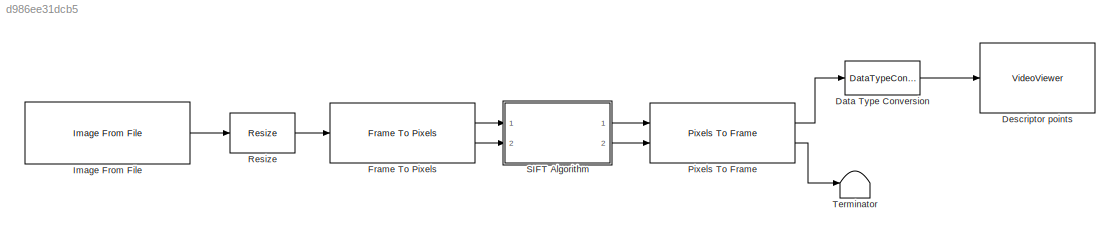
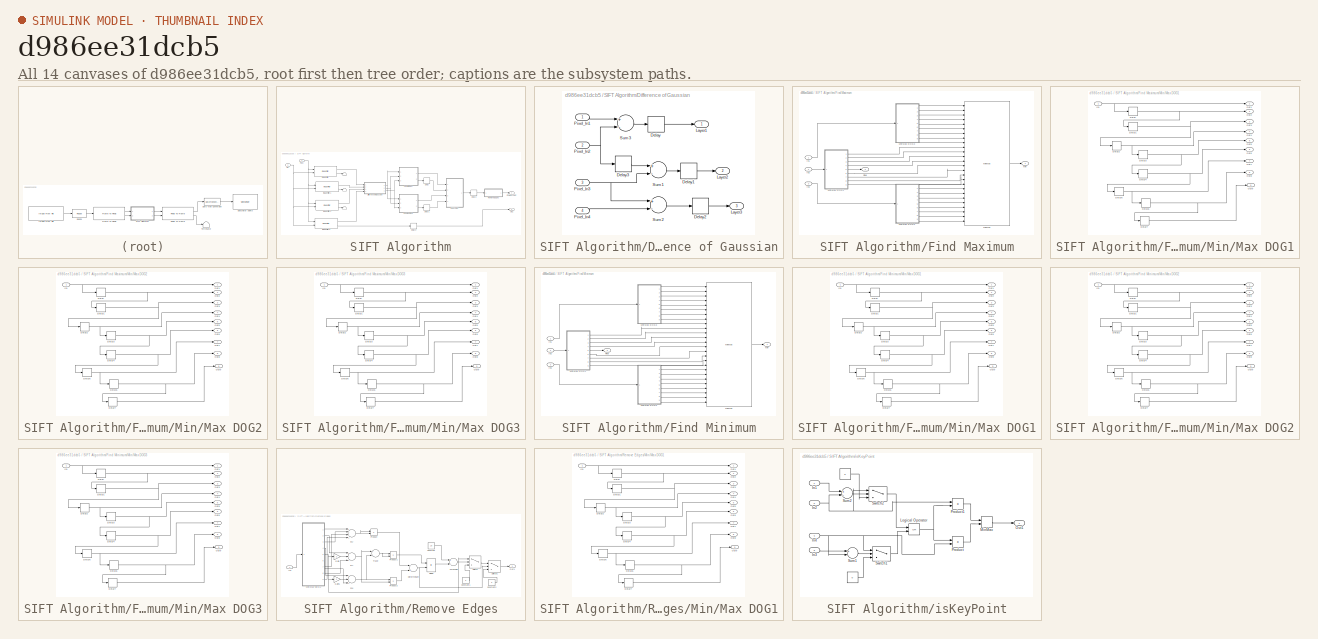
[diagram: thumbnail index - all 14 canvases of the model, root first then tree order]
MODEL slx_d986ee31dcb5
KIND model
CONFIG AbsTol = auto
CONFIG FixedStep = auto
CONFIG MaxStep = auto
CONFIG MinStep = auto
CONFIG RelTol = 1e-3
CONFIG SampleTimeConstraint = Unconstrained
CONFIG Solver = VariableStepAuto
CONFIG SolverMode = Auto
CONFIG SolverName = VariableStepAuto
CONFIG StartTime = 0.0
CONFIG StopTime = 10.0
BLOCK [DataTypeConversion] Data Type Conversion
  OutDataTypeStr = double
  RndMeth = Floor
  SaturateOnIntegerOverflow = off
BLOCK [VideoViewer] Descriptor points
  Ports = [1]
  ScopeSpecificationString = vipscopes.VideoViewerScopeCfg('CurrentConfiguration', extmgr.ConfigurationSet(extmgr.Configuration('Core','General UI',true),extmgr.Configuration('Core','Source UI',true),extmgr.Configuration('Sources','WiredSimulink',true),extmgr.Configuration('Visuals','Video',true),extmgr.Configuration('Tools','Image Tool',true),extmgr.Configuration('Tools','Pixel Region',true),extmgr.Configuration('Tools','Ima...<+46ch>
BLOCK [Reference] Frame To Pixels  REF=visionhdlio/Frame To Pixels
  Ports = [1, 2]
  SourceBlock = visionhdlio/Frame To Pixels
  SourceType = Frame To Pixels
BLOCK [Reference] Image From File  REF=visionsources/Image From File
  Ports = [0, 1]
  SourceBlock = visionsources/Image From File
  SourceType = Image From File
  Tag = vipblks_nd
BLOCK [Reference] Pixels To Frame  REF=visionhdlio/Pixels To Frame
  Ports = [2, 2]
  SourceBlock = visionhdlio/Pixels To Frame
  SourceType = Pixels To Frame
BLOCK [Reference] Resize  REF=visiongeotforms/Resize
  Ports = [1, 1]
  SourceBlock = visiongeotforms/Resize
  SourceType = Resize
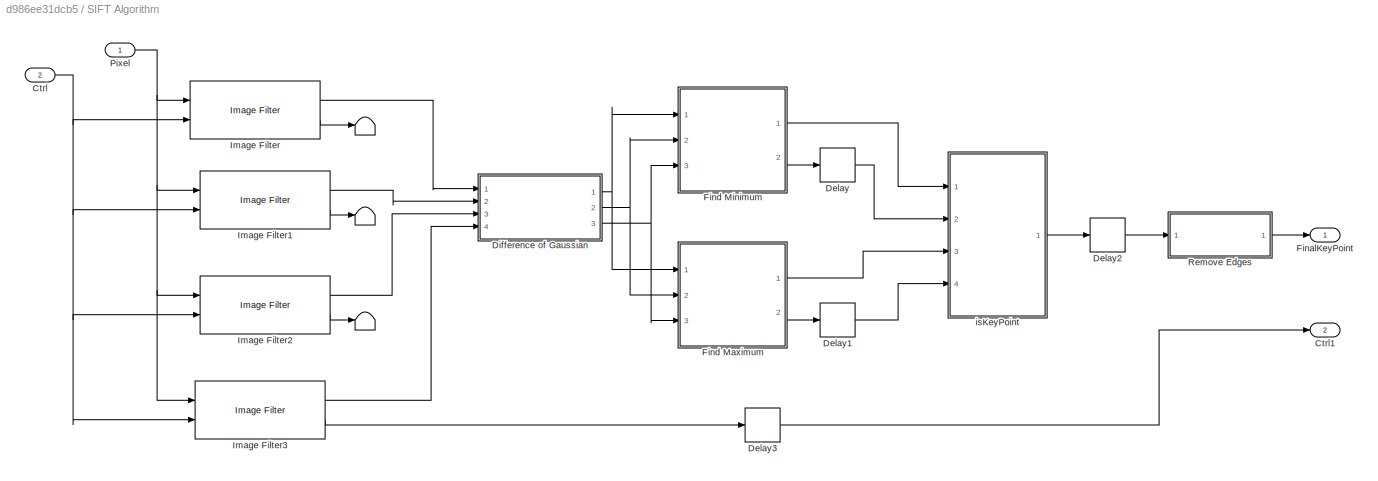
BLOCK [SubSystem] SIFT Algorithm
  Ports = [2, 2]
  RequestExecContextInheritance = off
  Variant = off
BLOCK [Terminator] SIFT Algorithm/ 
BLOCK [Inport] SIFT Algorithm/Ctrl
  IconDisplay = Port number
  Port = 2
BLOCK [Outport] SIFT Algorithm/Ctrl1
  IconDisplay = Port number
  Port = 2
BLOCK [Delay] SIFT Algorithm/Delay
  DelayLength = 323
  InitialCondition = 0
  InputPortMap = u0
  Ports = [1, 1]
BLOCK [Delay] SIFT Algorithm/Delay1
  DelayLength = 323
  InitialCondition = 0
  InputPortMap = u0
  Ports = [1, 1]
BLOCK [Delay] SIFT Algorithm/Delay2
  DelayLength = 1
  InitialCondition = 0
  InputPortMap = u0
  Ports = [1, 1]
BLOCK [Delay] SIFT Algorithm/Delay3
  DelayLength = 1373
  InitialCondition = 0
  InputPortMap = u0
  Ports = [1, 1]
BLOCK [SubSystem] SIFT Algorithm/Difference of Gaussian
  Ports = [4, 3]
  RequestExecContextInheritance = off
  Variant = off
BLOCK [Delay] SIFT Algorithm/Difference of Gaussian/Delay
  DelayLength = 13
  InitialCondition = 0
  InputPortMap = u0
  Ports = [1, 1]
BLOCK [Delay] SIFT Algorithm/Difference of Gaussian/Delay1
  DelayLength = 1
  InitialCondition = 0
  InputPortMap = u0
  Ports = [1, 1]
BLOCK [Delay] SIFT Algorithm/Difference of Gaussian/Delay2
  DelayLength = 1
  InitialCondition = 0
  InputPortMap = u0
  Ports = [1, 1]
BLOCK [Delay] SIFT Algorithm/Difference of Gaussian/Delay3
  DelayLength = 12
  InitialCondition = 0
  InputPortMap = u0
  Ports = [1, 1]
BLOCK [Outport] SIFT Algorithm/Difference of Gaussian/Layer1
  IconDisplay = Port number
BLOCK [Outport] SIFT Algorithm/Difference of Gaussian/Layer2
  IconDisplay = Port number
  Port = 2
BLOCK [Outport] SIFT Algorithm/Difference of Gaussian/Layer3
  IconDisplay = Port number
  Port = 3
BLOCK [Inport] SIFT Algorithm/Difference of Gaussian/Pixel_In1
  IconDisplay = Port number
BLOCK [Inport] SIFT Algorithm/Difference of Gaussian/Pixel_In2
  IconDisplay = Port number
  Port = 2
BLOCK [Inport] SIFT Algorithm/Difference of Gaussian/Pixel_In3
  IconDisplay = Port number
  Port = 3
BLOCK [Inport] SIFT Algorithm/Difference of Gaussian/Pixel_In4
  IconDisplay = Port number
  Port = 4
BLOCK [Sum] SIFT Algorithm/Difference of Gaussian/Sum1
  InputSameDT = off
  Inputs = +-
  OutDataTypeStr = Inherit: Inherit via internal rule
  Ports = [2, 1]
  SaturateOnIntegerOverflow = off
BLOCK [Sum] SIFT Algorithm/Difference of Gaussian/Sum2
  InputSameDT = off
  Inputs = +-
  OutDataTypeStr = Inherit: Inherit via internal rule
  Ports = [2, 1]
  SaturateOnIntegerOverflow = off
BLOCK [Sum] SIFT Algorithm/Difference of Gaussian/Sum3
  InputSameDT = off
  Inputs = +-
  OutDataTypeStr = Inherit: Inherit via internal rule
  Ports = [2, 1]
  SaturateOnIntegerOverflow = off
BLOCK [Outport] SIFT Algorithm/FinalKeyPoint
  IconDisplay = Port number
BLOCK [SubSystem] SIFT Algorithm/Find Maximum
  Ports = [3, 2]
  RequestExecContextInheritance = off
  Variant = off
BLOCK [Inport] SIFT Algorithm/Find Maximum/In1
  IconDisplay = Port number
BLOCK [Inport] SIFT Algorithm/Find Maximum/In2
  IconDisplay = Port number
  Port = 2
BLOCK [Inport] SIFT Algorithm/Find Maximum/In3
  IconDisplay = Port number
  Port = 3
BLOCK [Outport] SIFT Algorithm/Find Maximum/Min
  IconDisplay = Port number
BLOCK [SubSystem] SIFT Algorithm/Find Maximum/Min//Max DOG1
  Ports = [1, 9]
  RequestExecContextInheritance = off
  Variant = off
BLOCK [Delay] SIFT Algorithm/Find Maximum/Min//Max DOG1/Delay
  DelayLength = 1
  InitialCondition = 0
  InputPortMap = u0
  Ports = [1, 1]
BLOCK [Delay] SIFT Algorithm/Find Maximum/Min//Max DOG1/Delay1
  DelayLength = 1
  InitialCondition = 0
  InputPortMap = u0
  Ports = [1, 1]
BLOCK [Delay] SIFT Algorithm/Find Maximum/Min//Max DOG1/Delay2
  DelayLength = 320
  InitialCondition = 0
  InputPortMap = u0
  Ports = [1, 1]
BLOCK [Delay] SIFT Algorithm/Find Maximum/Min//Max DOG1/Delay3
  DelayLength = 1
  InitialCondition = 0
  InputPortMap = u0
  Ports = [1, 1]
BLOCK [Delay] SIFT Algorithm/Find Maximum/Min//Max DOG1/Delay4
  DelayLength = 1
  InitialCondition = 0
  InputPortMap = u0
  Ports = [1, 1]
BLOCK [Delay] SIFT Algorithm/Find Maximum/Min//Max DOG1/Delay5
  DelayLength = 320
  InitialCondition = 0
  InputPortMap = u0
  Ports = [1, 1]
BLOCK [Delay] SIFT Algorithm/Find Maximum/Min//Max DOG1/Delay6
  DelayLength = 1
  InitialCondition = 0
  InputPortMap = u0
  Ports = [1, 1]
BLOCK [Delay] SIFT Algorithm/Find Maximum/Min//Max DOG1/Delay7
  DelayLength = 1
  InitialCondition = 0
  InputPortMap = u0
  Ports = [1, 1]
BLOCK [Inport] SIFT Algorithm/Find Maximum/Min//Max DOG1/In1
  IconDisplay = Port number
BLOCK [Outport] SIFT Algorithm/Find Maximum/Min//Max DOG1/Out1
  IconDisplay = Port number
BLOCK [Outport] SIFT Algorithm/Find Maximum/Min//Max DOG1/Out2
  IconDisplay = Port number
  Port = 2
BLOCK [Outport] SIFT Algorithm/Find Maximum/Min//Max DOG1/Out3
  IconDisplay = Port number
  Port = 3
BLOCK [Outport] SIFT Algorithm/Find Maximum/Min//Max DOG1/Out4
  IconDisplay = Port number
  Port = 4
BLOCK [Outport] SIFT Algorithm/Find Maximum/Min//Max DOG1/Out5
  IconDisplay = Port number
  Port = 5
BLOCK [Outport] SIFT Algorithm/Find Maximum/Min//Max DOG1/Out6
  IconDisplay = Port number
  Port = 6
BLOCK [Outport] SIFT Algorithm/Find Maximum/Min//Max DOG1/Out7
  IconDisplay = Port number
  Port = 7
BLOCK [Outport] SIFT Algorithm/Find Maximum/Min//Max DOG1/Out8
  IconDisplay = Port number
  Port = 8
BLOCK [Outport] SIFT Algorithm/Find Maximum/Min//Max DOG1/Out9
  IconDisplay = Port number
  Port = 9
BLOCK [SubSystem] SIFT Algorithm/Find Maximum/Min//Max DOG2
  Ports = [1, 9]
  RequestExecContextInheritance = off
  Variant = off
BLOCK [Delay] SIFT Algorithm/Find Maximum/Min//Max DOG2/Delay
  DelayLength = 1
  InitialCondition = 0
  InputPortMap = u0
  Ports = [1, 1]
BLOCK [Delay] SIFT Algorithm/Find Maximum/Min//Max DOG2/Delay1
  DelayLength = 1
  InitialCondition = 0
  InputPortMap = u0
  Ports = [1, 1]
BLOCK [Delay] SIFT Algorithm/Find Maximum/Min//Max DOG2/Delay2
  DelayLength = 320
  InitialCondition = 0
  InputPortMap = u0
  Ports = [1, 1]
BLOCK [Delay] SIFT Algorithm/Find Maximum/Min//Max DOG2/Delay3
  DelayLength = 1
  InitialCondition = 0
  InputPortMap = u0
  Ports = [1, 1]
BLOCK [Delay] SIFT Algorithm/Find Maximum/Min//Max DOG2/Delay4
  DelayLength = 1
  InitialCondition = 0
  InputPortMap = u0
  Ports = [1, 1]
BLOCK [Delay] SIFT Algorithm/Find Maximum/Min//Max DOG2/Delay5
  DelayLength = 320
  InitialCondition = 0
  InputPortMap = u0
  Ports = [1, 1]
BLOCK [Delay] SIFT Algorithm/Find Maximum/Min//Max DOG2/Delay6
  DelayLength = 1
  InitialCondition = 0
  InputPortMap = u0
  Ports = [1, 1]
BLOCK [Delay] SIFT Algorithm/Find Maximum/Min//Max DOG2/Delay7
  DelayLength = 1
  InitialCondition = 0
  InputPortMap = u0
  Ports = [1, 1]
BLOCK [Inport] SIFT Algorithm/Find Maximum/Min//Max DOG2/In1
  IconDisplay = Port number
BLOCK [Outport] SIFT Algorithm/Find Maximum/Min//Max DOG2/Out1
  IconDisplay = Port number
BLOCK [Outport] SIFT Algorithm/Find Maximum/Min//Max DOG2/Out2
  IconDisplay = Port number
  Port = 2
BLOCK [Outport] SIFT Algorithm/Find Maximum/Min//Max DOG2/Out3
  IconDisplay = Port number
  Port = 3
BLOCK [Outport] SIFT Algorithm/Find Maximum/Min//Max DOG2/Out4
  IconDisplay = Port number
  Port = 4
BLOCK [Outport] SIFT Algorithm/Find Maximum/Min//Max DOG2/Out5
  IconDisplay = Port number
  Port = 5
BLOCK [Outport] SIFT Algorithm/Find Maximum/Min//Max DOG2/Out6
  IconDisplay = Port number
  Port = 6
BLOCK [Outport] SIFT Algorithm/Find Maximum/Min//Max DOG2/Out7
  IconDisplay = Port number
  Port = 7
BLOCK [Outport] SIFT Algorithm/Find Maximum/Min//Max DOG2/Out8
  IconDisplay = Port number
  Port = 8
BLOCK [Outport] SIFT Algorithm/Find Maximum/Min//Max DOG2/Out9
  IconDisplay = Port number
  Port = 9
BLOCK [SubSystem] SIFT Algorithm/Find Maximum/Min//Max DOG3
  Ports = [1, 9]
  RequestExecContextInheritance = off
  Variant = off
BLOCK [Delay] SIFT Algorithm/Find Maximum/Min//Max DOG3/Delay
  DelayLength = 1
  InitialCondition = 0
  InputPortMap = u0
  Ports = [1, 1]
BLOCK [Delay] SIFT Algorithm/Find Maximum/Min//Max DOG3/Delay1
  DelayLength = 1
  InitialCondition = 0
  InputPortMap = u0
  Ports = [1, 1]
BLOCK [Delay] SIFT Algorithm/Find Maximum/Min//Max DOG3/Delay2
  DelayLength = 320
  InitialCondition = 0
  InputPortMap = u0
  Ports = [1, 1]
BLOCK [Delay] SIFT Algorithm/Find Maximum/Min//Max DOG3/Delay3
  DelayLength = 1
  InitialCondition = 0
  InputPortMap = u0
  Ports = [1, 1]
BLOCK [Delay] SIFT Algorithm/Find Maximum/Min//Max DOG3/Delay4
  DelayLength = 1
  InitialCondition = 0
  InputPortMap = u0
  Ports = [1, 1]
BLOCK [Delay] SIFT Algorithm/Find Maximum/Min//Max DOG3/Delay5
  DelayLength = 320
  InitialCondition = 0
  InputPortMap = u0
  Ports = [1, 1]
BLOCK [Delay] SIFT Algorithm/Find Maximum/Min//Max DOG3/Delay6
  DelayLength = 1
  InitialCondition = 0
  InputPortMap = u0
  Ports = [1, 1]
BLOCK [Delay] SIFT Algorithm/Find Maximum/Min//Max DOG3/Delay7
  DelayLength = 1
  InitialCondition = 0
  InputPortMap = u0
  Ports = [1, 1]
BLOCK [Inport] SIFT Algorithm/Find Maximum/Min//Max DOG3/In1
  IconDisplay = Port number
BLOCK [Outport] SIFT Algorithm/Find Maximum/Min//Max DOG3/Out1
  IconDisplay = Port number
BLOCK [Outport] SIFT Algorithm/Find Maximum/Min//Max DOG3/Out2
  IconDisplay = Port number
  Port = 2
BLOCK [Outport] SIFT Algorithm/Find Maximum/Min//Max DOG3/Out3
  IconDisplay = Port number
  Port = 3
BLOCK [Outport] SIFT Algorithm/Find Maximum/Min//Max DOG3/Out4
  IconDisplay = Port number
  Port = 4
BLOCK [Outport] SIFT Algorithm/Find Maximum/Min//Max DOG3/Out5
  IconDisplay = Port number
  Port = 5
BLOCK [Outport] SIFT Algorithm/Find Maximum/Min//Max DOG3/Out6
  IconDisplay = Port number
  Port = 6
BLOCK [Outport] SIFT Algorithm/Find Maximum/Min//Max DOG3/Out7
  IconDisplay = Port number
  Port = 7
BLOCK [Outport] SIFT Algorithm/Find Maximum/Min//Max DOG3/Out8
  IconDisplay = Port number
  Port = 8
BLOCK [Outport] SIFT Algorithm/Find Maximum/Min//Max DOG3/Out9
  IconDisplay = Port number
  Port = 9
BLOCK [MinMax] SIFT Algorithm/Find Maximum/MinMax
  Function = max
  InputSameDT = off
  Inputs = 26
  Ports = [26, 1]
  SaturateOnIntegerOverflow = off
BLOCK [Outport] SIFT Algorithm/Find Maximum/Pixel
  IconDisplay = Port number
  Port = 2
BLOCK [SubSystem] SIFT Algorithm/Find Minimum
  Ports = [3, 2]
  RequestExecContextInheritance = off
  Variant = off
BLOCK [Inport] SIFT Algorithm/Find Minimum/In1
  IconDisplay = Port number
BLOCK [Inport] SIFT Algorithm/Find Minimum/In2
  IconDisplay = Port number
  Port = 2
BLOCK [Inport] SIFT Algorithm/Find Minimum/In3
  IconDisplay = Port number
  Port = 3
BLOCK [Outport] SIFT Algorithm/Find Minimum/Min
  IconDisplay = Port number
BLOCK [SubSystem] SIFT Algorithm/Find Minimum/Min//Max DOG1
  Ports = [1, 9]
  RequestExecContextInheritance = off
  Variant = off
BLOCK [Delay] SIFT Algorithm/Find Minimum/Min//Max DOG1/Delay
  DelayLength = 1
  InitialCondition = 0
  InputPortMap = u0
  Ports = [1, 1]
BLOCK [Delay] SIFT Algorithm/Find Minimum/Min//Max DOG1/Delay1
  DelayLength = 1
  InitialCondition = 0
  InputPortMap = u0
  Ports = [1, 1]
BLOCK [Delay] SIFT Algorithm/Find Minimum/Min//Max DOG1/Delay2
  DelayLength = 320
  InitialCondition = 0
  InputPortMap = u0
  Ports = [1, 1]
BLOCK [Delay] SIFT Algorithm/Find Minimum/Min//Max DOG1/Delay3
  DelayLength = 1
  InitialCondition = 0
  InputPortMap = u0
  Ports = [1, 1]
BLOCK [Delay] SIFT Algorithm/Find Minimum/Min//Max DOG1/Delay4
  DelayLength = 1
  InitialCondition = 0
  InputPortMap = u0
  Ports = [1, 1]
BLOCK [Delay] SIFT Algorithm/Find Minimum/Min//Max DOG1/Delay5
  DelayLength = 320
  InitialCondition = 0
  InputPortMap = u0
  Ports = [1, 1]
BLOCK [Delay] SIFT Algorithm/Find Minimum/Min//Max DOG1/Delay6
  DelayLength = 1
  InitialCondition = 0
  InputPortMap = u0
  Ports = [1, 1]
BLOCK [Delay] SIFT Algorithm/Find Minimum/Min//Max DOG1/Delay7
  DelayLength = 1
  InitialCondition = 0
  InputPortMap = u0
  Ports = [1, 1]
BLOCK [Inport] SIFT Algorithm/Find Minimum/Min//Max DOG1/In1
  IconDisplay = Port number
BLOCK [Outport] SIFT Algorithm/Find Minimum/Min//Max DOG1/Out1
  IconDisplay = Port number
BLOCK [Outport] SIFT Algorithm/Find Minimum/Min//Max DOG1/Out2
  IconDisplay = Port number
  Port = 2
BLOCK [Outport] SIFT Algorithm/Find Minimum/Min//Max DOG1/Out3
  IconDisplay = Port number
  Port = 3
BLOCK [Outport] SIFT Algorithm/Find Minimum/Min//Max DOG1/Out4
  IconDisplay = Port number
  Port = 4
BLOCK [Outport] SIFT Algorithm/Find Minimum/Min//Max DOG1/Out5
  IconDisplay = Port number
  Port = 5
BLOCK [Outport] SIFT Algorithm/Find Minimum/Min//Max DOG1/Out6
  IconDisplay = Port number
  Port = 6
BLOCK [Outport] SIFT Algorithm/Find Minimum/Min//Max DOG1/Out7
  IconDisplay = Port number
  Port = 7
BLOCK [Outport] SIFT Algorithm/Find Minimum/Min//Max DOG1/Out8
  IconDisplay = Port number
  Port = 8
BLOCK [Outport] SIFT Algorithm/Find Minimum/Min//Max DOG1/Out9
  IconDisplay = Port number
  Port = 9
BLOCK [SubSystem] SIFT Algorithm/Find Minimum/Min//Max DOG2
  Ports = [1, 9]
  RequestExecContextInheritance = off
  Variant = off
BLOCK [Delay] SIFT Algorithm/Find Minimum/Min//Max DOG2/Delay
  DelayLength = 1
  InitialCondition = 0
  InputPortMap = u0
  Ports = [1, 1]
BLOCK [Delay] SIFT Algorithm/Find Minimum/Min//Max DOG2/Delay1
  DelayLength = 1
  InitialCondition = 0
  InputPortMap = u0
  Ports = [1, 1]
BLOCK [Delay] SIFT Algorithm/Find Minimum/Min//Max DOG2/Delay2
  DelayLength = 320
  InitialCondition = 0
  InputPortMap = u0
  Ports = [1, 1]
BLOCK [Delay] SIFT Algorithm/Find Minimum/Min//Max DOG2/Delay3
  DelayLength = 1
  InitialCondition = 0
  InputPortMap = u0
  Ports = [1, 1]
BLOCK [Delay] SIFT Algorithm/Find Minimum/Min//Max DOG2/Delay4
  DelayLength = 1
  InitialCondition = 0
  InputPortMap = u0
  Ports = [1, 1]
BLOCK [Delay] SIFT Algorithm/Find Minimum/Min//Max DOG2/Delay5
  DelayLength = 320
  InitialCondition = 0
  InputPortMap = u0
  Ports = [1, 1]
BLOCK [Delay] SIFT Algorithm/Find Minimum/Min//Max DOG2/Delay6
  DelayLength = 1
  InitialCondition = 0
  InputPortMap = u0
  Ports = [1, 1]
BLOCK [Delay] SIFT Algorithm/Find Minimum/Min//Max DOG2/Delay7
  DelayLength = 1
  InitialCondition = 0
  InputPortMap = u0
  Ports = [1, 1]
BLOCK [Inport] SIFT Algorithm/Find Minimum/Min//Max DOG2/In1
  IconDisplay = Port number
BLOCK [Outport] SIFT Algorithm/Find Minimum/Min//Max DOG2/Out1
  IconDisplay = Port number
BLOCK [Outport] SIFT Algorithm/Find Minimum/Min//Max DOG2/Out2
  IconDisplay = Port number
  Port = 2
BLOCK [Outport] SIFT Algorithm/Find Minimum/Min//Max DOG2/Out3
  IconDisplay = Port number
  Port = 3
BLOCK [Outport] SIFT Algorithm/Find Minimum/Min//Max DOG2/Out4
  IconDisplay = Port number
  Port = 4
BLOCK [Outport] SIFT Algorithm/Find Minimum/Min//Max DOG2/Out5
  IconDisplay = Port number
  Port = 5
BLOCK [Outport] SIFT Algorithm/Find Minimum/Min//Max DOG2/Out6
  IconDisplay = Port number
  Port = 6
BLOCK [Outport] SIFT Algorithm/Find Minimum/Min//Max DOG2/Out7
  IconDisplay = Port number
  Port = 7
BLOCK [Outport] SIFT Algorithm/Find Minimum/Min//Max DOG2/Out8
  IconDisplay = Port number
  Port = 8
BLOCK [Outport] SIFT Algorithm/Find Minimum/Min//Max DOG2/Out9
  IconDisplay = Port number
  Port = 9
BLOCK [SubSystem] SIFT Algorithm/Find Minimum/Min//Max DOG3
  Ports = [1, 9]
  RequestExecContextInheritance = off
  Variant = off
BLOCK [Delay] SIFT Algorithm/Find Minimum/Min//Max DOG3/Delay
  DelayLength = 1
  InitialCondition = 0
  InputPortMap = u0
  Ports = [1, 1]
BLOCK [Delay] SIFT Algorithm/Find Minimum/Min//Max DOG3/Delay1
  DelayLength = 1
  InitialCondition = 0
  InputPortMap = u0
  Ports = [1, 1]
BLOCK [Delay] SIFT Algorithm/Find Minimum/Min//Max DOG3/Delay2
  DelayLength = 320
  InitialCondition = 0
  InputPortMap = u0
  Ports = [1, 1]
BLOCK [Delay] SIFT Algorithm/Find Minimum/Min//Max DOG3/Delay3
  DelayLength = 1
  InitialCondition = 0
  InputPortMap = u0
  Ports = [1, 1]
BLOCK [Delay] SIFT Algorithm/Find Minimum/Min//Max DOG3/Delay4
  DelayLength = 1
  InitialCondition = 0
  InputPortMap = u0
  Ports = [1, 1]
BLOCK [Delay] SIFT Algorithm/Find Minimum/Min//Max DOG3/Delay5
  DelayLength = 320
  InitialCondition = 0
  InputPortMap = u0
  Ports = [1, 1]
BLOCK [Delay] SIFT Algorithm/Find Minimum/Min//Max DOG3/Delay6
  DelayLength = 1
  InitialCondition = 0
  InputPortMap = u0
  Ports = [1, 1]
BLOCK [Delay] SIFT Algorithm/Find Minimum/Min//Max DOG3/Delay7
  DelayLength = 1
  InitialCondition = 0
  InputPortMap = u0
  Ports = [1, 1]
BLOCK [Inport] SIFT Algorithm/Find Minimum/Min//Max DOG3/In1
  IconDisplay = Port number
BLOCK [Outport] SIFT Algorithm/Find Minimum/Min//Max DOG3/Out1
  IconDisplay = Port number
BLOCK [Outport] SIFT Algorithm/Find Minimum/Min//Max DOG3/Out2
  IconDisplay = Port number
  Port = 2
BLOCK [Outport] SIFT Algorithm/Find Minimum/Min//Max DOG3/Out3
  IconDisplay = Port number
  Port = 3
BLOCK [Outport] SIFT Algorithm/Find Minimum/Min//Max DOG3/Out4
  IconDisplay = Port number
  Port = 4
BLOCK [Outport] SIFT Algorithm/Find Minimum/Min//Max DOG3/Out5
  IconDisplay = Port number
  Port = 5
BLOCK [Outport] SIFT Algorithm/Find Minimum/Min//Max DOG3/Out6
  IconDisplay = Port number
  Port = 6
BLOCK [Outport] SIFT Algorithm/Find Minimum/Min//Max DOG3/Out7
  IconDisplay = Port number
  Port = 7
BLOCK [Outport] SIFT Algorithm/Find Minimum/Min//Max DOG3/Out8
  IconDisplay = Port number
  Port = 8
BLOCK [Outport] SIFT Algorithm/Find Minimum/Min//Max DOG3/Out9
  IconDisplay = Port number
  Port = 9
BLOCK [MinMax] SIFT Algorithm/Find Minimum/MinMax
  InputSameDT = off
  Inputs = 26
  Ports = [26, 1]
  SaturateOnIntegerOverflow = off
BLOCK [Outport] SIFT Algorithm/Find Minimum/Pixel
  IconDisplay = Port number
  Port = 2
BLOCK [Reference] SIFT Algorithm/Image Filter  REF=visionhdlfilter/Image Filter
  Ports = [2, 2]
  SourceBlock = visionhdlfilter/Image Filter
  SourceType = Image Filter
BLOCK [Reference] SIFT Algorithm/Image Filter1  REF=visionhdlfilter/Image Filter
  Ports = [2, 2]
  SourceBlock = visionhdlfilter/Image Filter
  SourceType = Image Filter
BLOCK [Reference] SIFT Algorithm/Image Filter2  REF=visionhdlfilter/Image Filter
  Ports = [2, 2]
  SourceBlock = visionhdlfilter/Image Filter
  SourceType = Image Filter
BLOCK [Reference] SIFT Algorithm/Image Filter3  REF=visionhdlfilter/Image Filter
  Ports = [2, 2]
  SourceBlock = visionhdlfilter/Image Filter
  SourceType = Image Filter
BLOCK [Inport] SIFT Algorithm/Pixel
  IconDisplay = Port number
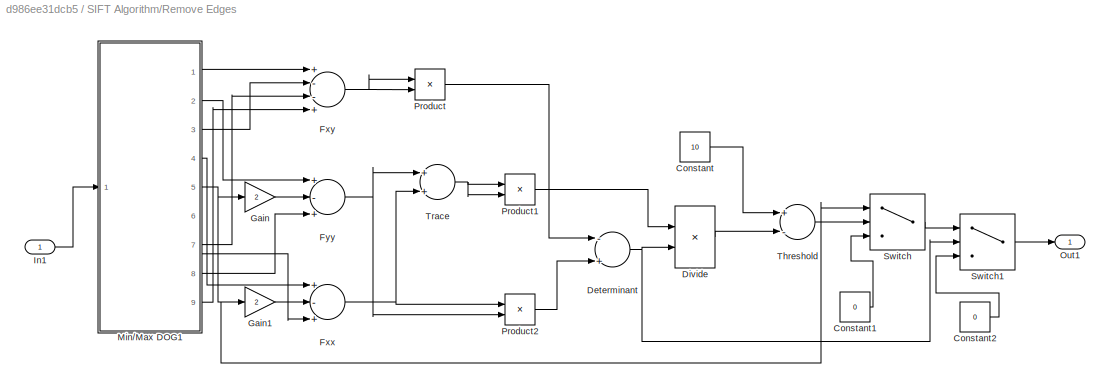
BLOCK [SubSystem] SIFT Algorithm/Remove Edges
  Ports = [1, 1]
  RequestExecContextInheritance = off
  Variant = off
BLOCK [Constant] SIFT Algorithm/Remove Edges/Constant
  Value = 10
BLOCK [Constant] SIFT Algorithm/Remove Edges/Constant1
  Value = 0
BLOCK [Constant] SIFT Algorithm/Remove Edges/Constant2
  Value = 0
BLOCK [Sum] SIFT Algorithm/Remove Edges/Determinant
  InputSameDT = off
  Inputs = -+
  OutDataTypeStr = Inherit: Inherit via internal rule
  Ports = [2, 1]
  SaturateOnIntegerOverflow = off
BLOCK [Product] SIFT Algorithm/Remove Edges/Divide
  InputSameDT = off
  Inputs = */
  OutDataTypeStr = Inherit: Inherit via internal rule
  Ports = [2, 1]
  RndMeth = Floor
  SaturateOnIntegerOverflow = off
BLOCK [Sum] SIFT Algorithm/Remove Edges/Fxx
  InputSameDT = off
  Inputs = +-+
  OutDataTypeStr = Inherit: Inherit via internal rule
  Ports = [3, 1]
  SaturateOnIntegerOverflow = off
BLOCK [Sum] SIFT Algorithm/Remove Edges/Fxy
  InputSameDT = off
  Inputs = +--+
  OutDataTypeStr = Inherit: Inherit via internal rule
  Ports = [4, 1]
  SaturateOnIntegerOverflow = off
BLOCK [Sum] SIFT Algorithm/Remove Edges/Fyy
  InputSameDT = off
  Inputs = +-+
  OutDataTypeStr = Inherit: Inherit via internal rule
  Ports = [3, 1]
  SaturateOnIntegerOverflow = off
BLOCK [Gain] SIFT Algorithm/Remove Edges/Gain
  Gain = 2
  OutDataTypeStr = Inherit: Inherit via internal rule
  ParamDataTypeStr = Inherit: Inherit via internal rule
  SaturateOnIntegerOverflow = off
BLOCK [Gain] SIFT Algorithm/Remove Edges/Gain1
  Gain = 2
  OutDataTypeStr = Inherit: Inherit via internal rule
  ParamDataTypeStr = Inherit: Inherit via internal rule
  SaturateOnIntegerOverflow = off
BLOCK [Inport] SIFT Algorithm/Remove Edges/In1
  IconDisplay = Port number
BLOCK [SubSystem] SIFT Algorithm/Remove Edges/Min//Max DOG1
  Ports = [1, 9]
  RequestExecContextInheritance = off
  Variant = off
BLOCK [Delay] SIFT Algorithm/Remove Edges/Min//Max DOG1/Delay
  DelayLength = 1
  InitialCondition = 0
  InputPortMap = u0
  Ports = [1, 1]
BLOCK [Delay] SIFT Algorithm/Remove Edges/Min//Max DOG1/Delay1
  DelayLength = 1
  InitialCondition = 0
  InputPortMap = u0
  Ports = [1, 1]
BLOCK [Delay] SIFT Algorithm/Remove Edges/Min//Max DOG1/Delay2
  DelayLength = 320
  InitialCondition = 0
  InputPortMap = u0
  Ports = [1, 1]
BLOCK [Delay] SIFT Algorithm/Remove Edges/Min//Max DOG1/Delay3
  DelayLength = 1
  InitialCondition = 0
  InputPortMap = u0
  Ports = [1, 1]
BLOCK [Delay] SIFT Algorithm/Remove Edges/Min//Max DOG1/Delay4
  DelayLength = 1
  InitialCondition = 0
  InputPortMap = u0
  Ports = [1, 1]
BLOCK [Delay] SIFT Algorithm/Remove Edges/Min//Max DOG1/Delay5
  DelayLength = 320
  InitialCondition = 0
  InputPortMap = u0
  Ports = [1, 1]
BLOCK [Delay] SIFT Algorithm/Remove Edges/Min//Max DOG1/Delay6
  DelayLength = 1
  InitialCondition = 0
  InputPortMap = u0
  Ports = [1, 1]
BLOCK [Delay] SIFT Algorithm/Remove Edges/Min//Max DOG1/Delay7
  DelayLength = 1
  InitialCondition = 0
  InputPortMap = u0
  Ports = [1, 1]
BLOCK [Inport] SIFT Algorithm/Remove Edges/Min//Max DOG1/In1
  IconDisplay = Port number
BLOCK [Outport] SIFT Algorithm/Remove Edges/Min//Max DOG1/Out1
  IconDisplay = Port number
BLOCK [Outport] SIFT Algorithm/Remove Edges/Min//Max DOG1/Out2
  IconDisplay = Port number
  Port = 2
BLOCK [Outport] SIFT Algorithm/Remove Edges/Min//Max DOG1/Out3
  IconDisplay = Port number
  Port = 3
BLOCK [Outport] SIFT Algorithm/Remove Edges/Min//Max DOG1/Out4
  IconDisplay = Port number
  Port = 4
BLOCK [Outport] SIFT Algorithm/Remove Edges/Min//Max DOG1/Out5
  IconDisplay = Port number
  Port = 5
BLOCK [Outport] SIFT Algorithm/Remove Edges/Min//Max DOG1/Out6
  IconDisplay = Port number
  Port = 6
BLOCK [Outport] SIFT Algorithm/Remove Edges/Min//Max DOG1/Out7
  IconDisplay = Port number
  Port = 7
BLOCK [Outport] SIFT Algorithm/Remove Edges/Min//Max DOG1/Out8
  IconDisplay = Port number
  Port = 8
BLOCK [Outport] SIFT Algorithm/Remove Edges/Min//Max DOG1/Out9
  IconDisplay = Port number
  Port = 9
BLOCK [Outport] SIFT Algorithm/Remove Edges/Out1
  IconDisplay = Port number
BLOCK [Product] SIFT Algorithm/Remove Edges/Product
  InputSameDT = off
  OutDataTypeStr = Inherit: Inherit via internal rule
  Ports = [2, 1]
  RndMeth = Floor
  SaturateOnIntegerOverflow = off
BLOCK [Product] SIFT Algorithm/Remove Edges/Product1
  InputSameDT = off
  OutDataTypeStr = Inherit: Inherit via internal rule
  Ports = [2, 1]
  RndMeth = Floor
  SaturateOnIntegerOverflow = off
BLOCK [Product] SIFT Algorithm/Remove Edges/Product2
  InputSameDT = off
  OutDataTypeStr = Inherit: Inherit via internal rule
  Ports = [2, 1]
  RndMeth = Floor
  SaturateOnIntegerOverflow = off
BLOCK [Switch] SIFT Algorithm/Remove Edges/Switch
  InputSameDT = off
  SaturateOnIntegerOverflow = off
BLOCK [Switch] SIFT Algorithm/Remove Edges/Switch1
  InputSameDT = off
  SaturateOnIntegerOverflow = off
BLOCK [Sum] SIFT Algorithm/Remove Edges/Threshold
  InputSameDT = off
  Inputs = +-
  OutDataTypeStr = Inherit: Inherit via internal rule
  Ports = [2, 1]
  SaturateOnIntegerOverflow = off
BLOCK [Sum] SIFT Algorithm/Remove Edges/Trace
  InputSameDT = off
  OutDataTypeStr = Inherit: Inherit via internal rule
  Ports = [2, 1]
  SaturateOnIntegerOverflow = off
BLOCK [SubSystem] SIFT Algorithm/isKeyPoint
  Ports = [4, 1]
  RequestExecContextInheritance = off
  Variant = off
BLOCK [Constant] SIFT Algorithm/isKeyPoint/ 
  Value = 0
BLOCK [Inport] SIFT Algorithm/isKeyPoint/In1
  IconDisplay = Port number
BLOCK [Inport] SIFT Algorithm/isKeyPoint/In2
  IconDisplay = Port number
  Port = 2
BLOCK [Inport] SIFT Algorithm/isKeyPoint/In3
  IconDisplay = Port number
  Port = 3
BLOCK [Inport] SIFT Algorithm/isKeyPoint/In4
  IconDisplay = Port number
  Port = 4
BLOCK [Logic] SIFT Algorithm/isKeyPoint/Logical Operator
  AllPortsSameDT = off
  Operator = OR
  OutDataTypeStr = boolean
  Ports = [2, 1]
BLOCK [MinMax] SIFT Algorithm/isKeyPoint/MinMax
  Function = max
  InputSameDT = off
  Inputs = 2
  Ports = [2, 1]
  SaturateOnIntegerOverflow = off
BLOCK [Outport] SIFT Algorithm/isKeyPoint/Out1
  IconDisplay = Port number
BLOCK [Product] SIFT Algorithm/isKeyPoint/Product
  InputSameDT = off
  OutDataTypeStr = Inherit: Inherit via internal rule
  Ports = [2, 1]
  RndMeth = Floor
  SaturateOnIntegerOverflow = off
BLOCK [Product] SIFT Algorithm/isKeyPoint/Product1
  InputSameDT = off
  OutDataTypeStr = Inherit: Inherit via internal rule
  Ports = [2, 1]
  RndMeth = Floor
  SaturateOnIntegerOverflow = off
BLOCK [Sum] SIFT Algorithm/isKeyPoint/Sum1
  InputSameDT = off
  Inputs = +-
  OutDataTypeStr = Inherit: Inherit via internal rule
  Ports = [2, 1]
  SaturateOnIntegerOverflow = off
BLOCK [Sum] SIFT Algorithm/isKeyPoint/Sum2
  InputSameDT = off
  Inputs = +-
  OutDataTypeStr = Inherit: Inherit via internal rule
  Ports = [2, 1]
  SaturateOnIntegerOverflow = off
BLOCK [Switch] SIFT Algorithm/isKeyPoint/Switch1
  InputSameDT = off
  SaturateOnIntegerOverflow = off
BLOCK [Switch] SIFT Algorithm/isKeyPoint/Switch2
  InputSameDT = off
  SaturateOnIntegerOverflow = off
BLOCK [Terminator] Terminator
LINE Data Type Conversion:1 -> Descriptor points:1
LINE Frame To Pixels:1 -> SIFT Algorithm:1
LINE Frame To Pixels:2 -> SIFT Algorithm:2
LINE Image From File:1 -> Resize:1
LINE Pixels To Frame:1 -> Data Type Conversion:1
LINE Pixels To Frame:2 -> Terminator:1
LINE Resize:1 -> Frame To Pixels:1
NET SIFT Algorithm/Ctrl:1 -> SIFT Algorithm/Image Filter1:2, SIFT Algorithm/Image Filter2:2, SIFT Algorithm/Image Filter3:2, SIFT Algorithm/Image Filter:2
LINE SIFT Algorithm/Delay1:1 -> SIFT Algorithm/isKeyPoint:4
LINE SIFT Algorithm/Delay2:1 -> SIFT Algorithm/Remove Edges:1
LINE SIFT Algorithm/Delay3:1 -> SIFT Algorithm/Ctrl1:1
LINE SIFT Algorithm/Delay:1 -> SIFT Algorithm/isKeyPoint:2
LINE SIFT Algorithm/Difference of Gaussian/Delay1:1 -> SIFT Algorithm/Difference of Gaussian/Layer2:1
LINE SIFT Algorithm/Difference of Gaussian/Delay2:1 -> SIFT Algorithm/Difference of Gaussian/Layer3:1
LINE SIFT Algorithm/Difference of Gaussian/Delay3:1 -> SIFT Algorithm/Difference of Gaussian/Sum1:1
LINE SIFT Algorithm/Difference of Gaussian/Delay:1 -> SIFT Algorithm/Difference of Gaussian/Layer1:1
LINE SIFT Algorithm/Difference of Gaussian/Pixel_In1:1 -> SIFT Algorithm/Difference of Gaussian/Sum3:1
NET SIFT Algorithm/Difference of Gaussian/Pixel_In2:1 -> SIFT Algorithm/Difference of Gaussian/Delay3:1, SIFT Algorithm/Difference of Gaussian/Sum3:2
NET SIFT Algorithm/Difference of Gaussian/Pixel_In3:1 -> SIFT Algorithm/Difference of Gaussian/Sum1:2, SIFT Algorithm/Difference of Gaussian/Sum2:1
LINE SIFT Algorithm/Difference of Gaussian/Pixel_In4:1 -> SIFT Algorithm/Difference of Gaussian/Sum2:2
LINE SIFT Algorithm/Difference of Gaussian/Sum1:1 -> SIFT Algorithm/Difference of Gaussian/Delay1:1
LINE SIFT Algorithm/Difference of Gaussian/Sum2:1 -> SIFT Algorithm/Difference of Gaussian/Delay2:1
LINE SIFT Algorithm/Difference of Gaussian/Sum3:1 -> SIFT Algorithm/Difference of Gaussian/Delay:1
NET SIFT Algorithm/Difference of Gaussian:1 -> SIFT Algorithm/Find Maximum:1, SIFT Algorithm/Find Minimum:1
NET SIFT Algorithm/Difference of Gaussian:2 -> SIFT Algorithm/Find Maximum:2, SIFT Algorithm/Find Minimum:2
NET SIFT Algorithm/Difference of Gaussian:3 -> SIFT Algorithm/Find Maximum:3, SIFT Algorithm/Find Minimum:3
LINE SIFT Algorithm/Find Maximum/In1:1 -> SIFT Algorithm/Find Maximum/Min//Max DOG3:1
LINE SIFT Algorithm/Find Maximum/In2:1 -> SIFT Algorithm/Find Maximum/Min//Max DOG1:1
LINE SIFT Algorithm/Find Maximum/In3:1 -> SIFT Algorithm/Find Maximum/Min//Max DOG2:1
NET SIFT Algorithm/Find Maximum/Min//Max DOG1/Delay1:1 -> SIFT Algorithm/Find Maximum/Min//Max DOG1/Delay2:1, SIFT Algorithm/Find Maximum/Min//Max DOG1/Out3:1
NET SIFT Algorithm/Find Maximum/Min//Max DOG1/Delay2:1 -> SIFT Algorithm/Find Maximum/Min//Max DOG1/Delay3:1, SIFT Algorithm/Find Maximum/Min//Max DOG1/Out4:1
NET SIFT Algorithm/Find Maximum/Min//Max DOG1/Delay3:1 -> SIFT Algorithm/Find Maximum/Min//Max DOG1/Delay4:1, SIFT Algorithm/Find Maximum/Min//Max DOG1/Out5:1
NET SIFT Algorithm/Find Maximum/Min//Max DOG1/Delay4:1 -> SIFT Algorithm/Find Maximum/Min//Max DOG1/Delay5:1, SIFT Algorithm/Find Maximum/Min//Max DOG1/Out6:1
NET SIFT Algorithm/Find Maximum/Min//Max DOG1/Delay5:1 -> SIFT Algorithm/Find Maximum/Min//Max DOG1/Delay6:1, SIFT Algorithm/Find Maximum/Min//Max DOG1/Out7:1
NET SIFT Algorithm/Find Maximum/Min//Max DOG1/Delay6:1 -> SIFT Algorithm/Find Maximum/Min//Max DOG1/Delay7:1, SIFT Algorithm/Find Maximum/Min//Max DOG1/Out8:1
LINE SIFT Algorithm/Find Maximum/Min//Max DOG1/Delay7:1 -> SIFT Algorithm/Find Maximum/Min//Max DOG1/Out9:1
NET SIFT Algorithm/Find Maximum/Min//Max DOG1/Delay:1 -> SIFT Algorithm/Find Maximum/Min//Max DOG1/Delay1:1, SIFT Algorithm/Find Maximum/Min//Max DOG1/Out2:1
NET SIFT Algorithm/Find Maximum/Min//Max DOG1/In1:1 -> SIFT Algorithm/Find Maximum/Min//Max DOG1/Delay:1, SIFT Algorithm/Find Maximum/Min//Max DOG1/Out1:1
LINE SIFT Algorithm/Find Maximum/Min//Max DOG1:1 -> SIFT Algorithm/Find Maximum/MinMax:10
LINE SIFT Algorithm/Find Maximum/Min//Max DOG1:2 -> SIFT Algorithm/Find Maximum/MinMax:11
LINE SIFT Algorithm/Find Maximum/Min//Max DOG1:3 -> SIFT Algorithm/Find Maximum/MinMax:12
LINE SIFT Algorithm/Find Maximum/Min//Max DOG1:4 -> SIFT Algorithm/Find Maximum/MinMax:13
LINE SIFT Algorithm/Find Maximum/Min//Max DOG1:5 -> SIFT Algorithm/Find Maximum/Pixel:1
LINE SIFT Algorithm/Find Maximum/Min//Max DOG1:6 -> SIFT Algorithm/Find Maximum/MinMax:14
LINE SIFT Algorithm/Find Maximum/Min//Max DOG1:7 -> SIFT Algorithm/Find Maximum/MinMax:15
LINE SIFT Algorithm/Find Maximum/Min//Max DOG1:8 -> SIFT Algorithm/Find Maximum/MinMax:16
LINE SIFT Algorithm/Find Maximum/Min//Max DOG1:9 -> SIFT Algorithm/Find Maximum/MinMax:17
NET SIFT Algorithm/Find Maximum/Min//Max DOG2/Delay1:1 -> SIFT Algorithm/Find Maximum/Min//Max DOG2/Delay2:1, SIFT Algorithm/Find Maximum/Min//Max DOG2/Out3:1
NET SIFT Algorithm/Find Maximum/Min//Max DOG2/Delay2:1 -> SIFT Algorithm/Find Maximum/Min//Max DOG2/Delay3:1, SIFT Algorithm/Find Maximum/Min//Max DOG2/Out4:1
NET SIFT Algorithm/Find Maximum/Min//Max DOG2/Delay3:1 -> SIFT Algorithm/Find Maximum/Min//Max DOG2/Delay4:1, SIFT Algorithm/Find Maximum/Min//Max DOG2/Out5:1
NET SIFT Algorithm/Find Maximum/Min//Max DOG2/Delay4:1 -> SIFT Algorithm/Find Maximum/Min//Max DOG2/Delay5:1, SIFT Algorithm/Find Maximum/Min//Max DOG2/Out6:1
NET SIFT Algorithm/Find Maximum/Min//Max DOG2/Delay5:1 -> SIFT Algorithm/Find Maximum/Min//Max DOG2/Delay6:1, SIFT Algorithm/Find Maximum/Min//Max DOG2/Out7:1
NET SIFT Algorithm/Find Maximum/Min//Max DOG2/Delay6:1 -> SIFT Algorithm/Find Maximum/Min//Max DOG2/Delay7:1, SIFT Algorithm/Find Maximum/Min//Max DOG2/Out8:1
LINE SIFT Algorithm/Find Maximum/Min//Max DOG2/Delay7:1 -> SIFT Algorithm/Find Maximum/Min//Max DOG2/Out9:1
NET SIFT Algorithm/Find Maximum/Min//Max DOG2/Delay:1 -> SIFT Algorithm/Find Maximum/Min//Max DOG2/Delay1:1, SIFT Algorithm/Find Maximum/Min//Max DOG2/Out2:1
NET SIFT Algorithm/Find Maximum/Min//Max DOG2/In1:1 -> SIFT Algorithm/Find Maximum/Min//Max DOG2/Delay:1, SIFT Algorithm/Find Maximum/Min//Max DOG2/Out1:1
LINE SIFT Algorithm/Find Maximum/Min//Max DOG2:1 -> SIFT Algorithm/Find Maximum/MinMax:18
LINE SIFT Algorithm/Find Maximum/Min//Max DOG2:2 -> SIFT Algorithm/Find Maximum/MinMax:19
LINE SIFT Algorithm/Find Maximum/Min//Max DOG2:3 -> SIFT Algorithm/Find Maximum/MinMax:20
LINE SIFT Algorithm/Find Maximum/Min//Max DOG2:4 -> SIFT Algorithm/Find Maximum/MinMax:21
LINE SIFT Algorithm/Find Maximum/Min//Max DOG2:5 -> SIFT Algorithm/Find Maximum/MinMax:22
LINE SIFT Algorithm/Find Maximum/Min//Max DOG2:6 -> SIFT Algorithm/Find Maximum/MinMax:23
LINE SIFT Algorithm/Find Maximum/Min//Max DOG2:7 -> SIFT Algorithm/Find Maximum/MinMax:24
LINE SIFT Algorithm/Find Maximum/Min//Max DOG2:8 -> SIFT Algorithm/Find Maximum/MinMax:25
LINE SIFT Algorithm/Find Maximum/Min//Max DOG2:9 -> SIFT Algorithm/Find Maximum/MinMax:26
NET SIFT Algorithm/Find Maximum/Min//Max DOG3/Delay1:1 -> SIFT Algorithm/Find Maximum/Min//Max DOG3/Delay2:1, SIFT Algorithm/Find Maximum/Min//Max DOG3/Out3:1
NET SIFT Algorithm/Find Maximum/Min//Max DOG3/Delay2:1 -> SIFT Algorithm/Find Maximum/Min//Max DOG3/Delay3:1, SIFT Algorithm/Find Maximum/Min//Max DOG3/Out4:1
NET SIFT Algorithm/Find Maximum/Min//Max DOG3/Delay3:1 -> SIFT Algorithm/Find Maximum/Min//Max DOG3/Delay4:1, SIFT Algorithm/Find Maximum/Min//Max DOG3/Out5:1
NET SIFT Algorithm/Find Maximum/Min//Max DOG3/Delay4:1 -> SIFT Algorithm/Find Maximum/Min//Max DOG3/Delay5:1, SIFT Algorithm/Find Maximum/Min//Max DOG3/Out6:1
NET SIFT Algorithm/Find Maximum/Min//Max DOG3/Delay5:1 -> SIFT Algorithm/Find Maximum/Min//Max DOG3/Delay6:1, SIFT Algorithm/Find Maximum/Min//Max DOG3/Out7:1
NET SIFT Algorithm/Find Maximum/Min//Max DOG3/Delay6:1 -> SIFT Algorithm/Find Maximum/Min//Max DOG3/Delay7:1, SIFT Algorithm/Find Maximum/Min//Max DOG3/Out8:1
LINE SIFT Algorithm/Find Maximum/Min//Max DOG3/Delay7:1 -> SIFT Algorithm/Find Maximum/Min//Max DOG3/Out9:1
NET SIFT Algorithm/Find Maximum/Min//Max DOG3/Delay:1 -> SIFT Algorithm/Find Maximum/Min//Max DOG3/Delay1:1, SIFT Algorithm/Find Maximum/Min//Max DOG3/Out2:1
NET SIFT Algorithm/Find Maximum/Min//Max DOG3/In1:1 -> SIFT Algorithm/Find Maximum/Min//Max DOG3/Delay:1, SIFT Algorithm/Find Maximum/Min//Max DOG3/Out1:1
LINE SIFT Algorithm/Find Maximum/Min//Max DOG3:1 -> SIFT Algorithm/Find Maximum/MinMax:1
LINE SIFT Algorithm/Find Maximum/Min//Max DOG3:2 -> SIFT Algorithm/Find Maximum/MinMax:2
LINE SIFT Algorithm/Find Maximum/Min//Max DOG3:3 -> SIFT Algorithm/Find Maximum/MinMax:3
LINE SIFT Algorithm/Find Maximum/Min//Max DOG3:4 -> SIFT Algorithm/Find Maximum/MinMax:4
LINE SIFT Algorithm/Find Maximum/Min//Max DOG3:5 -> SIFT Algorithm/Find Maximum/MinMax:5
LINE SIFT Algorithm/Find Maximum/Min//Max DOG3:6 -> SIFT Algorithm/Find Maximum/MinMax:6
LINE SIFT Algorithm/Find Maximum/Min//Max DOG3:7 -> SIFT Algorithm/Find Maximum/MinMax:7
LINE SIFT Algorithm/Find Maximum/Min//Max DOG3:8 -> SIFT Algorithm/Find Maximum/MinMax:8
LINE SIFT Algorithm/Find Maximum/Min//Max DOG3:9 -> SIFT Algorithm/Find Maximum/MinMax:9
LINE SIFT Algorithm/Find Maximum/MinMax:1 -> SIFT Algorithm/Find Maximum/Min:1
LINE SIFT Algorithm/Find Maximum:1 -> SIFT Algorithm/isKeyPoint:3
LINE SIFT Algorithm/Find Maximum:2 -> SIFT Algorithm/Delay1:1
LINE SIFT Algorithm/Find Minimum/In1:1 -> SIFT Algorithm/Find Minimum/Min//Max DOG3:1
LINE SIFT Algorithm/Find Minimum/In2:1 -> SIFT Algorithm/Find Minimum/Min//Max DOG1:1
LINE SIFT Algorithm/Find Minimum/In3:1 -> SIFT Algorithm/Find Minimum/Min//Max DOG2:1
NET SIFT Algorithm/Find Minimum/Min//Max DOG1/Delay1:1 -> SIFT Algorithm/Find Minimum/Min//Max DOG1/Delay2:1, SIFT Algorithm/Find Minimum/Min//Max DOG1/Out3:1
NET SIFT Algorithm/Find Minimum/Min//Max DOG1/Delay2:1 -> SIFT Algorithm/Find Minimum/Min//Max DOG1/Delay3:1, SIFT Algorithm/Find Minimum/Min//Max DOG1/Out4:1
NET SIFT Algorithm/Find Minimum/Min//Max DOG1/Delay3:1 -> SIFT Algorithm/Find Minimum/Min//Max DOG1/Delay4:1, SIFT Algorithm/Find Minimum/Min//Max DOG1/Out5:1
NET SIFT Algorithm/Find Minimum/Min//Max DOG1/Delay4:1 -> SIFT Algorithm/Find Minimum/Min//Max DOG1/Delay5:1, SIFT Algorithm/Find Minimum/Min//Max DOG1/Out6:1
NET SIFT Algorithm/Find Minimum/Min//Max DOG1/Delay5:1 -> SIFT Algorithm/Find Minimum/Min//Max DOG1/Delay6:1, SIFT Algorithm/Find Minimum/Min//Max DOG1/Out7:1
NET SIFT Algorithm/Find Minimum/Min//Max DOG1/Delay6:1 -> SIFT Algorithm/Find Minimum/Min//Max DOG1/Delay7:1, SIFT Algorithm/Find Minimum/Min//Max DOG1/Out8:1
LINE SIFT Algorithm/Find Minimum/Min//Max DOG1/Delay7:1 -> SIFT Algorithm/Find Minimum/Min//Max DOG1/Out9:1
NET SIFT Algorithm/Find Minimum/Min//Max DOG1/Delay:1 -> SIFT Algorithm/Find Minimum/Min//Max DOG1/Delay1:1, SIFT Algorithm/Find Minimum/Min//Max DOG1/Out2:1
NET SIFT Algorithm/Find Minimum/Min//Max DOG1/In1:1 -> SIFT Algorithm/Find Minimum/Min//Max DOG1/Delay:1, SIFT Algorithm/Find Minimum/Min//Max DOG1/Out1:1
LINE SIFT Algorithm/Find Minimum/Min//Max DOG1:1 -> SIFT Algorithm/Find Minimum/MinMax:10
LINE SIFT Algorithm/Find Minimum/Min//Max DOG1:2 -> SIFT Algorithm/Find Minimum/MinMax:11
LINE SIFT Algorithm/Find Minimum/Min//Max DOG1:3 -> SIFT Algorithm/Find Minimum/MinMax:12
LINE SIFT Algorithm/Find Minimum/Min//Max DOG1:4 -> SIFT Algorithm/Find Minimum/MinMax:13
LINE SIFT Algorithm/Find Minimum/Min//Max DOG1:5 -> SIFT Algorithm/Find Minimum/Pixel:1
LINE SIFT Algorithm/Find Minimum/Min//Max DOG1:6 -> SIFT Algorithm/Find Minimum/MinMax:14
LINE SIFT Algorithm/Find Minimum/Min//Max DOG1:7 -> SIFT Algorithm/Find Minimum/MinMax:15
LINE SIFT Algorithm/Find Minimum/Min//Max DOG1:8 -> SIFT Algorithm/Find Minimum/MinMax:16
LINE SIFT Algorithm/Find Minimum/Min//Max DOG1:9 -> SIFT Algorithm/Find Minimum/MinMax:17
NET SIFT Algorithm/Find Minimum/Min//Max DOG2/Delay1:1 -> SIFT Algorithm/Find Minimum/Min//Max DOG2/Delay2:1, SIFT Algorithm/Find Minimum/Min//Max DOG2/Out3:1
NET SIFT Algorithm/Find Minimum/Min//Max DOG2/Delay2:1 -> SIFT Algorithm/Find Minimum/Min//Max DOG2/Delay3:1, SIFT Algorithm/Find Minimum/Min//Max DOG2/Out4:1
NET SIFT Algorithm/Find Minimum/Min//Max DOG2/Delay3:1 -> SIFT Algorithm/Find Minimum/Min//Max DOG2/Delay4:1, SIFT Algorithm/Find Minimum/Min//Max DOG2/Out5:1
NET SIFT Algorithm/Find Minimum/Min//Max DOG2/Delay4:1 -> SIFT Algorithm/Find Minimum/Min//Max DOG2/Delay5:1, SIFT Algorithm/Find Minimum/Min//Max DOG2/Out6:1
NET SIFT Algorithm/Find Minimum/Min//Max DOG2/Delay5:1 -> SIFT Algorithm/Find Minimum/Min//Max DOG2/Delay6:1, SIFT Algorithm/Find Minimum/Min//Max DOG2/Out7:1
NET SIFT Algorithm/Find Minimum/Min//Max DOG2/Delay6:1 -> SIFT Algorithm/Find Minimum/Min//Max DOG2/Delay7:1, SIFT Algorithm/Find Minimum/Min//Max DOG2/Out8:1
LINE SIFT Algorithm/Find Minimum/Min//Max DOG2/Delay7:1 -> SIFT Algorithm/Find Minimum/Min//Max DOG2/Out9:1
NET SIFT Algorithm/Find Minimum/Min//Max DOG2/Delay:1 -> SIFT Algorithm/Find Minimum/Min//Max DOG2/Delay1:1, SIFT Algorithm/Find Minimum/Min//Max DOG2/Out2:1
NET SIFT Algorithm/Find Minimum/Min//Max DOG2/In1:1 -> SIFT Algorithm/Find Minimum/Min//Max DOG2/Delay:1, SIFT Algorithm/Find Minimum/Min//Max DOG2/Out1:1
LINE SIFT Algorithm/Find Minimum/Min//Max DOG2:1 -> SIFT Algorithm/Find Minimum/MinMax:18
LINE SIFT Algorithm/Find Minimum/Min//Max DOG2:2 -> SIFT Algorithm/Find Minimum/MinMax:19
LINE SIFT Algorithm/Find Minimum/Min//Max DOG2:3 -> SIFT Algorithm/Find Minimum/MinMax:20
LINE SIFT Algorithm/Find Minimum/Min//Max DOG2:4 -> SIFT Algorithm/Find Minimum/MinMax:21
LINE SIFT Algorithm/Find Minimum/Min//Max DOG2:5 -> SIFT Algorithm/Find Minimum/MinMax:22
LINE SIFT Algorithm/Find Minimum/Min//Max DOG2:6 -> SIFT Algorithm/Find Minimum/MinMax:23
LINE SIFT Algorithm/Find Minimum/Min//Max DOG2:7 -> SIFT Algorithm/Find Minimum/MinMax:24
LINE SIFT Algorithm/Find Minimum/Min//Max DOG2:8 -> SIFT Algorithm/Find Minimum/MinMax:25
LINE SIFT Algorithm/Find Minimum/Min//Max DOG2:9 -> SIFT Algorithm/Find Minimum/MinMax:26
NET SIFT Algorithm/Find Minimum/Min//Max DOG3/Delay1:1 -> SIFT Algorithm/Find Minimum/Min//Max DOG3/Delay2:1, SIFT Algorithm/Find Minimum/Min//Max DOG3/Out3:1
NET SIFT Algorithm/Find Minimum/Min//Max DOG3/Delay2:1 -> SIFT Algorithm/Find Minimum/Min//Max DOG3/Delay3:1, SIFT Algorithm/Find Minimum/Min//Max DOG3/Out4:1
NET SIFT Algorithm/Find Minimum/Min//Max DOG3/Delay3:1 -> SIFT Algorithm/Find Minimum/Min//Max DOG3/Delay4:1, SIFT Algorithm/Find Minimum/Min//Max DOG3/Out5:1
NET SIFT Algorithm/Find Minimum/Min//Max DOG3/Delay4:1 -> SIFT Algorithm/Find Minimum/Min//Max DOG3/Delay5:1, SIFT Algorithm/Find Minimum/Min//Max DOG3/Out6:1
NET SIFT Algorithm/Find Minimum/Min//Max DOG3/Delay5:1 -> SIFT Algorithm/Find Minimum/Min//Max DOG3/Delay6:1, SIFT Algorithm/Find Minimum/Min//Max DOG3/Out7:1
NET SIFT Algorithm/Find Minimum/Min//Max DOG3/Delay6:1 -> SIFT Algorithm/Find Minimum/Min//Max DOG3/Delay7:1, SIFT Algorithm/Find Minimum/Min//Max DOG3/Out8:1
LINE SIFT Algorithm/Find Minimum/Min//Max DOG3/Delay7:1 -> SIFT Algorithm/Find Minimum/Min//Max DOG3/Out9:1
NET SIFT Algorithm/Find Minimum/Min//Max DOG3/Delay:1 -> SIFT Algorithm/Find Minimum/Min//Max DOG3/Delay1:1, SIFT Algorithm/Find Minimum/Min//Max DOG3/Out2:1
NET SIFT Algorithm/Find Minimum/Min//Max DOG3/In1:1 -> SIFT Algorithm/Find Minimum/Min//Max DOG3/Delay:1, SIFT Algorithm/Find Minimum/Min//Max DOG3/Out1:1
LINE SIFT Algorithm/Find Minimum/Min//Max DOG3:1 -> SIFT Algorithm/Find Minimum/MinMax:1
LINE SIFT Algorithm/Find Minimum/Min//Max DOG3:2 -> SIFT Algorithm/Find Minimum/MinMax:2
LINE SIFT Algorithm/Find Minimum/Min//Max DOG3:3 -> SIFT Algorithm/Find Minimum/MinMax:3
LINE SIFT Algorithm/Find Minimum/Min//Max DOG3:4 -> SIFT Algorithm/Find Minimum/MinMax:4
LINE SIFT Algorithm/Find Minimum/Min//Max DOG3:5 -> SIFT Algorithm/Find Minimum/MinMax:5
LINE SIFT Algorithm/Find Minimum/Min//Max DOG3:6 -> SIFT Algorithm/Find Minimum/MinMax:6
LINE SIFT Algorithm/Find Minimum/Min//Max DOG3:7 -> SIFT Algorithm/Find Minimum/MinMax:7
LINE SIFT Algorithm/Find Minimum/Min//Max DOG3:8 -> SIFT Algorithm/Find Minimum/MinMax:8
LINE SIFT Algorithm/Find Minimum/Min//Max DOG3:9 -> SIFT Algorithm/Find Minimum/MinMax:9
LINE SIFT Algorithm/Find Minimum/MinMax:1 -> SIFT Algorithm/Find Minimum/Min:1
LINE SIFT Algorithm/Find Minimum:1 -> SIFT Algorithm/isKeyPoint:1
LINE SIFT Algorithm/Find Minimum:2 -> SIFT Algorithm/Delay:1
LINE SIFT Algorithm/Image Filter1:1 -> SIFT Algorithm/Difference of Gaussian:2
LINE SIFT Algorithm/Image Filter1:2 -> SIFT Algorithm/ :1
LINE SIFT Algorithm/Image Filter2:1 -> SIFT Algorithm/Difference of Gaussian:3
LINE SIFT Algorithm/Image Filter2:2 -> SIFT Algorithm/ :1
LINE SIFT Algorithm/Image Filter3:1 -> SIFT Algorithm/Difference of Gaussian:4
LINE SIFT Algorithm/Image Filter3:2 -> SIFT Algorithm/Delay3:1
LINE SIFT Algorithm/Image Filter:1 -> SIFT Algorithm/Difference of Gaussian:1
LINE SIFT Algorithm/Image Filter:2 -> SIFT Algorithm/ :1
NET SIFT Algorithm/Pixel:1 -> SIFT Algorithm/Image Filter1:1, SIFT Algorithm/Image Filter2:1, SIFT Algorithm/Image Filter3:1, SIFT Algorithm/Image Filter:1
LINE SIFT Algorithm/Remove Edges/Constant1:1 -> SIFT Algorithm/Remove Edges/Switch:3
LINE SIFT Algorithm/Remove Edges/Constant2:1 -> SIFT Algorithm/Remove Edges/Switch1:3
LINE SIFT Algorithm/Remove Edges/Constant:1 -> SIFT Algorithm/Remove Edges/Threshold:1
NET SIFT Algorithm/Remove Edges/Determinant:1 -> SIFT Algorithm/Remove Edges/Divide:2, SIFT Algorithm/Remove Edges/Switch1:2
LINE SIFT Algorithm/Remove Edges/Divide:1 -> SIFT Algorithm/Remove Edges/Threshold:2
NET SIFT Algorithm/Remove Edges/Fxx:1 -> SIFT Algorithm/Remove Edges/Product2:1, SIFT Algorithm/Remove Edges/Trace:2
NET SIFT Algorithm/Remove Edges/Fxy:1 -> SIFT Algorithm/Remove Edges/Product:1, SIFT Algorithm/Remove Edges/Product:2
NET SIFT Algorithm/Remove Edges/Fyy:1 -> SIFT Algorithm/Remove Edges/Product2:2, SIFT Algorithm/Remove Edges/Trace:1
LINE SIFT Algorithm/Remove Edges/Gain1:1 -> SIFT Algorithm/Remove Edges/Fxx:2
LINE SIFT Algorithm/Remove Edges/Gain:1 -> SIFT Algorithm/Remove Edges/Fyy:2
LINE SIFT Algorithm/Remove Edges/In1:1 -> SIFT Algorithm/Remove Edges/Min//Max DOG1:1
NET SIFT Algorithm/Remove Edges/Min//Max DOG1/Delay1:1 -> SIFT Algorithm/Remove Edges/Min//Max DOG1/Delay2:1, SIFT Algorithm/Remove Edges/Min//Max DOG1/Out3:1
NET SIFT Algorithm/Remove Edges/Min//Max DOG1/Delay2:1 -> SIFT Algorithm/Remove Edges/Min//Max DOG1/Delay3:1, SIFT Algorithm/Remove Edges/Min//Max DOG1/Out4:1
NET SIFT Algorithm/Remove Edges/Min//Max DOG1/Delay3:1 -> SIFT Algorithm/Remove Edges/Min//Max DOG1/Delay4:1, SIFT Algorithm/Remove Edges/Min//Max DOG1/Out5:1
NET SIFT Algorithm/Remove Edges/Min//Max DOG1/Delay4:1 -> SIFT Algorithm/Remove Edges/Min//Max DOG1/Delay5:1, SIFT Algorithm/Remove Edges/Min//Max DOG1/Out6:1
NET SIFT Algorithm/Remove Edges/Min//Max DOG1/Delay5:1 -> SIFT Algorithm/Remove Edges/Min//Max DOG1/Delay6:1, SIFT Algorithm/Remove Edges/Min//Max DOG1/Out7:1
NET SIFT Algorithm/Remove Edges/Min//Max DOG1/Delay6:1 -> SIFT Algorithm/Remove Edges/Min//Max DOG1/Delay7:1, SIFT Algorithm/Remove Edges/Min//Max DOG1/Out8:1
LINE SIFT Algorithm/Remove Edges/Min//Max DOG1/Delay7:1 -> SIFT Algorithm/Remove Edges/Min//Max DOG1/Out9:1
NET SIFT Algorithm/Remove Edges/Min//Max DOG1/Delay:1 -> SIFT Algorithm/Remove Edges/Min//Max DOG1/Delay1:1, SIFT Algorithm/Remove Edges/Min//Max DOG1/Out2:1
NET SIFT Algorithm/Remove Edges/Min//Max DOG1/In1:1 -> SIFT Algorithm/Remove Edges/Min//Max DOG1/Delay:1, SIFT Algorithm/Remove Edges/Min//Max DOG1/Out1:1
LINE SIFT Algorithm/Remove Edges/Min//Max DOG1:1 -> SIFT Algorithm/Remove Edges/Fxy:1
LINE SIFT Algorithm/Remove Edges/Min//Max DOG1:2 -> SIFT Algorithm/Remove Edges/Fyy:1
LINE SIFT Algorithm/Remove Edges/Min//Max DOG1:3 -> SIFT Algorithm/Remove Edges/Fxy:2
LINE SIFT Algorithm/Remove Edges/Min//Max DOG1:4 -> SIFT Algorithm/Remove Edges/Fxx:1
NET SIFT Algorithm/Remove Edges/Min//Max DOG1:5 -> SIFT Algorithm/Remove Edges/Gain1:1, SIFT Algorithm/Remove Edges/Gain:1, SIFT Algorithm/Remove Edges/Switch:1
LINE SIFT Algorithm/Remove Edges/Min//Max DOG1:6 -> SIFT Algorithm/Remove Edges/Fxx:3
LINE SIFT Algorithm/Remove Edges/Min//Max DOG1:7 -> SIFT Algorithm/Remove Edges/Fxy:3
LINE SIFT Algorithm/Remove Edges/Min//Max DOG1:8 -> SIFT Algorithm/Remove Edges/Fyy:3
LINE SIFT Algorithm/Remove Edges/Min//Max DOG1:9 -> SIFT Algorithm/Remove Edges/Fxy:4
LINE SIFT Algorithm/Remove Edges/Product1:1 -> SIFT Algorithm/Remove Edges/Divide:1
LINE SIFT Algorithm/Remove Edges/Product2:1 -> SIFT Algorithm/Remove Edges/Determinant:2
LINE SIFT Algorithm/Remove Edges/Product:1 -> SIFT Algorithm/Remove Edges/Determinant:1
LINE SIFT Algorithm/Remove Edges/Switch1:1 -> SIFT Algorithm/Remove Edges/Out1:1
LINE SIFT Algorithm/Remove Edges/Switch:1 -> SIFT Algorithm/Remove Edges/Switch1:1
LINE SIFT Algorithm/Remove Edges/Threshold:1 -> SIFT Algorithm/Remove Edges/Switch:2
NET SIFT Algorithm/Remove Edges/Trace:1 -> SIFT Algorithm/Remove Edges/Product1:1, SIFT Algorithm/Remove Edges/Product1:2
LINE SIFT Algorithm/Remove Edges:1 -> SIFT Algorithm/FinalKeyPoint:1
NET SIFT Algorithm/isKeyPoint/ :1 -> SIFT Algorithm/isKeyPoint/Switch1:3, SIFT Algorithm/isKeyPoint/Switch2:3
LINE SIFT Algorithm/isKeyPoint/In1:1 -> SIFT Algorithm/isKeyPoint/Sum2:1
NET SIFT Algorithm/isKeyPoint/In2:1 -> SIFT Algorithm/isKeyPoint/Product1:1, SIFT Algorithm/isKeyPoint/Sum2:2, SIFT Algorithm/isKeyPoint/Switch2:1
LINE SIFT Algorithm/isKeyPoint/In3:1 -> SIFT Algorithm/isKeyPoint/Sum1:1
NET SIFT Algorithm/isKeyPoint/In4:1 -> SIFT Algorithm/isKeyPoint/Product:2, SIFT Algorithm/isKeyPoint/Sum1:2, SIFT Algorithm/isKeyPoint/Switch1:1
NET SIFT Algorithm/isKeyPoint/Logical Operator:1 -> SIFT Algorithm/isKeyPoint/Product1:2, SIFT Algorithm/isKeyPoint/Product:1
LINE SIFT Algorithm/isKeyPoint/MinMax:1 -> SIFT Algorithm/isKeyPoint/Out1:1
LINE SIFT Algorithm/isKeyPoint/Product1:1 -> SIFT Algorithm/isKeyPoint/MinMax:1
LINE SIFT Algorithm/isKeyPoint/Product:1 -> SIFT Algorithm/isKeyPoint/MinMax:2
LINE SIFT Algorithm/isKeyPoint/Sum1:1 -> SIFT Algorithm/isKeyPoint/Switch1:2
LINE SIFT Algorithm/isKeyPoint/Sum2:1 -> SIFT Algorithm/isKeyPoint/Switch2:2
LINE SIFT Algorithm/isKeyPoint/Switch1:1 -> SIFT Algorithm/isKeyPoint/Logical Operator:2
LINE SIFT Algorithm/isKeyPoint/Switch2:1 -> SIFT Algorithm/isKeyPoint/Logical Operator:1
LINE SIFT Algorithm/isKeyPoint:1 -> SIFT Algorithm/Delay2:1
LINE SIFT Algorithm:1 -> Pixels To Frame:1
LINE SIFT Algorithm:2 -> Pixels To Frame:2
note: NET lines group one-source signal fan-out (src -> all destinations, sorted); 1:1 wires keep LINE
